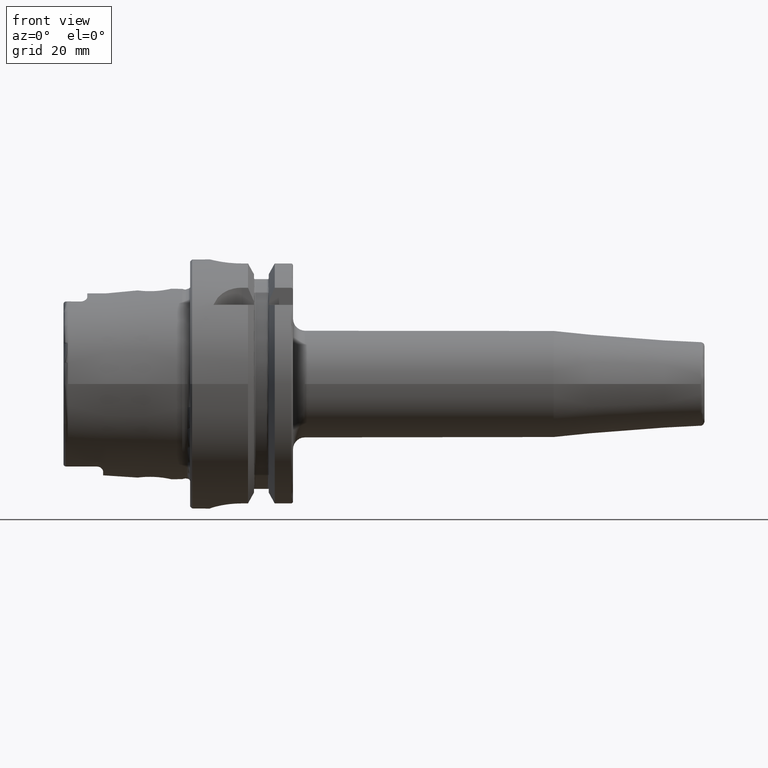
[diagram: clean part render]
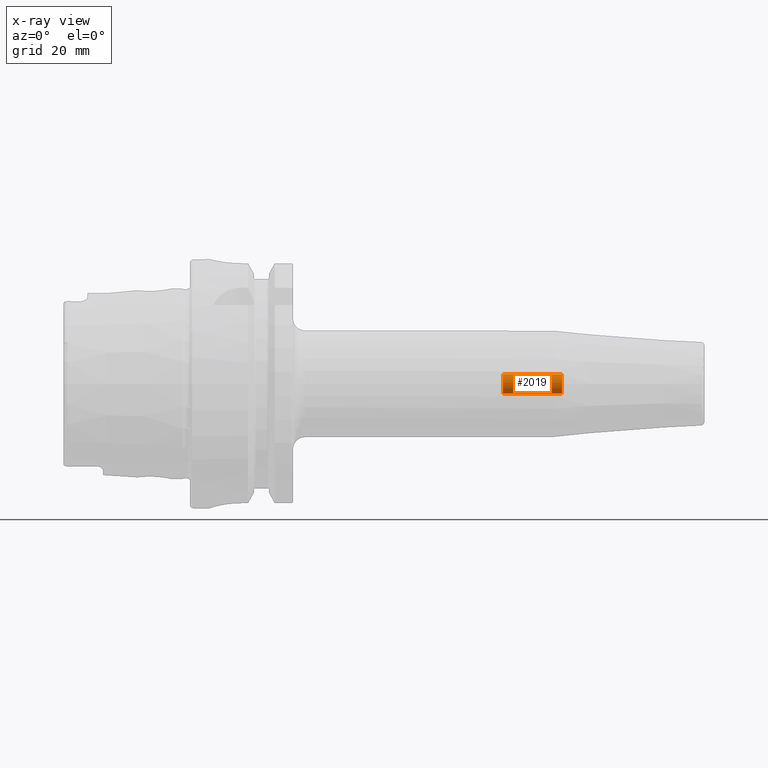
[diagram: x-ray — body ghosted, one internal face saturated and labeled with its STEP entity id]
A machine part, front view, then the same camera in x-ray: the body is ghosted and one INTERNAL B-rep face — a face not visible from any outside direction — is saturated and labeled: STEP entity #2019.
In plain terms, the highlighted cylindrical surface (bore or boss wall) has radius 2.4585 mm, axis along (1, 0, 0).
Its self-contained STEP definition (entity closure, byte-faithful):
#182=CYLINDRICAL_SURFACE('',#2184,2.4585);
#226=FACE_OUTER_BOUND('',#351,.T.);
#351=EDGE_LOOP('',(#1408,#1409,#1410,#1411,#1412));
#484=LINE('',#3118,#594);
#594=VECTOR('',#2496,2.4585);
#708=CIRCLE('',#2185,2.4585);
#709=CIRCLE('',#2186,2.4585);
#710=CIRCLE('',#2187,2.4585);
#846=VERTEX_POINT('',#3115);
#847=VERTEX_POINT('',#3117);
#848=VERTEX_POINT('',#3119);
#1063=EDGE_CURVE('',#846,#846,#708,.T.);
#1064=EDGE_CURVE('',#846,#847,#484,.T.);
#1065=EDGE_CURVE('',#848,#847,#709,.T.);
#1066=EDGE_CURVE('',#847,#848,#710,.T.);
#1408=ORIENTED_EDGE('',*,*,#1063,.F.);
#1409=ORIENTED_EDGE('',*,*,#1064,.T.);
#1410=ORIENTED_EDGE('',*,*,#1065,.F.);
#1411=ORIENTED_EDGE('',*,*,#1066,.F.);
#1412=ORIENTED_EDGE('',*,*,#1064,.F.);
#2019=ADVANCED_FACE('',(#226),#182,.F.);
#2184=AXIS2_PLACEMENT_3D('',#3114,#2492,#2493);
#2185=AXIS2_PLACEMENT_3D('',#3116,#2494,#2495);
#2186=AXIS2_PLACEMENT_3D('',#3120,#2497,#2498);
#2187=AXIS2_PLACEMENT_3D('',#3121,#2499,#2500);
#2492=DIRECTION('center_axis',(1.,0.,0.));
#2493=DIRECTION('ref_axis',(0.,0.,-1.));
#2494=DIRECTION('center_axis',(-1.,0.,0.));
#2495=DIRECTION('ref_axis',(0.,0.,-1.));
#2496=DIRECTION('',(-1.,0.,0.));
#2497=DIRECTION('center_axis',(1.,0.,0.));
#2498=DIRECTION('ref_axis',(0.,0.,-1.));
#2499=DIRECTION('center_axis',(1.,0.,0.));
#2500=DIRECTION('ref_axis',(0.,0.,-1.));
#3114=CARTESIAN_POINT('Origin',(-90.8860575566876,0.,0.));
#3115=CARTESIAN_POINT('',(94.,-3.01079415570377E-16,2.4585));
#3116=CARTESIAN_POINT('Origin',(94.,0.,0.));
#3117=CARTESIAN_POINT('',(79.0463987680365,-3.01079415570377E-16,2.4585));
#3118=CARTESIAN_POINT('',(-90.8860575566876,-3.01079415570377E-16,2.4585));
#3119=CARTESIAN_POINT('',(79.0463987680365,-3.01079415570376E-16,-2.45849999999999));
#3120=CARTESIAN_POINT('Origin',(79.0463987680365,0.,0.));
#3121=CARTESIAN_POINT('Origin',(79.0463987680365,0.,0.));